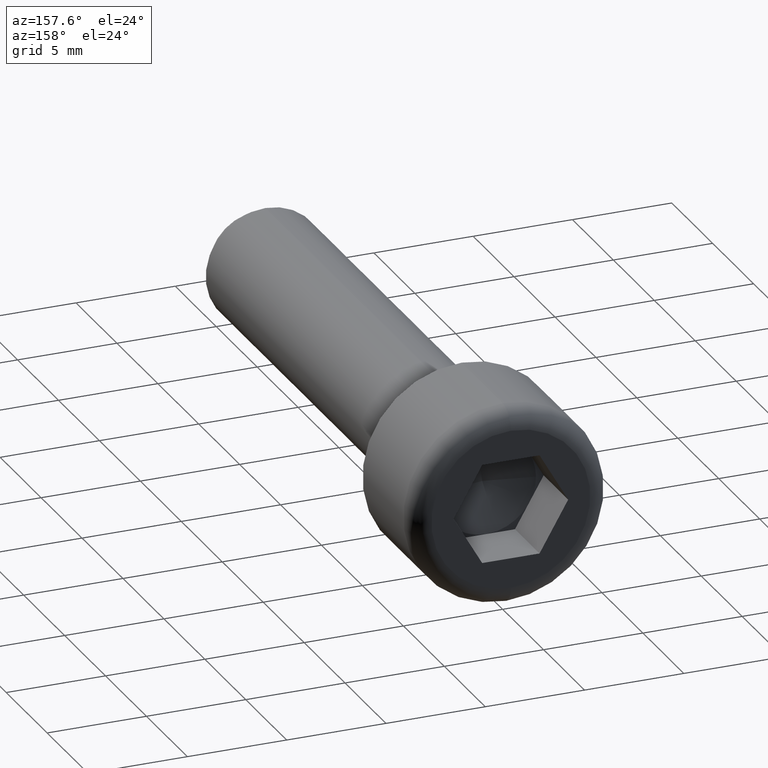
[diagram: clean part render]
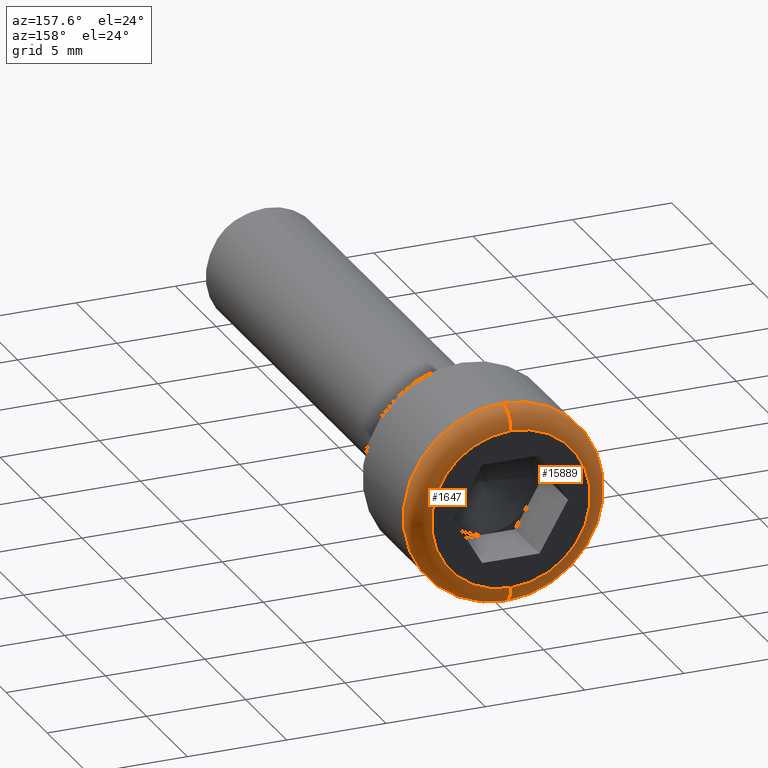
[diagram: same view with one multi-face feature highlighted, each face labeled with its STEP entity id]
A machine part, auxiliary view. The highlighted faces form ONE feature: a constant-radius fillet chain: 2 tangent blend faces with common blend radius 1 mm. The faces share edges in the B-rep.
Their STEP definitions:
[1] entity #15889 (Torus):
#61 = CARTESIAN_POINT ( 'NONE',  ( 0.000000000000000000, 5.000000000000000000, -5.000000000000000000 ) ) ;
#255 = DIRECTION ( 'NONE',  ( -0.000000000000000000, -1.000000000000000000, -0.000000000000000000 ) ) ;
#267 = EDGE_CURVE ( 'NONE', #4363, #9775, #15121, .T. ) ;
#712 = CARTESIAN_POINT ( 'NONE',  ( 0.000000000000000000, 5.000000000000000000, 4.000000000000000000 ) ) ;
#968 = VERTEX_POINT ( 'NONE', #3137 ) ;
#1314 = EDGE_CURVE ( 'NONE', #5402, #4363, #9071, .T. ) ;
#1478 = ORIENTED_EDGE ( 'NONE', *, *, #7745, .F. ) ;
#1779 = EDGE_CURVE ( 'NONE', #968, #9775, #2478, .T. ) ;
#2253 = DIRECTION ( 'NONE',  ( 0.000000000000000000, 1.000000000000000000, 0.000000000000000000 ) ) ;
#2478 = CIRCLE ( 'NONE', #5931, 1.000000000000000000 ) ;
#3137 = CARTESIAN_POINT ( 'NONE',  ( 6.123233995736766282E-16, 5.000000000000000000, 5.000000000000000000 ) ) ;
#3350 = DIRECTION ( 'NONE',  ( -1.000000000000000000, 0.000000000000000000, 0.000000000000000000 ) ) ;
#3963 = ORIENTED_EDGE ( 'NONE', *, *, #1779, .T. ) ;
#4363 = VERTEX_POINT ( 'NONE', #5431 ) ;
#5120 = DIRECTION ( 'NONE',  ( 1.000000000000000000, -0.000000000000000000, 1.224646799147353207E-16 ) ) ;
#5402 = VERTEX_POINT ( 'NONE', #61 ) ;
#5418 = DIRECTION ( 'NONE',  ( 0.000000000000000000, 0.000000000000000000, 1.000000000000000000 ) ) ;
#5431 = CARTESIAN_POINT ( 'NONE',  ( 5.510910596163088569E-16, 6.000000000000000000, -4.000000000000000000 ) ) ;
#5931 = AXIS2_PLACEMENT_3D ( 'NONE', #712, #3350, #7778 ) ;
#6273 = CIRCLE ( 'NONE', #8019, 5.000000000000000000 ) ;
#6415 = ORIENTED_EDGE ( 'NONE', *, *, #267, .F. ) ;
#6444 = DIRECTION ( 'NONE',  ( 0.000000000000000000, 0.000000000000000000, 1.000000000000000000 ) ) ;
#7745 = EDGE_CURVE ( 'NONE', #968, #5402, #6273, .T. ) ;
#7778 = DIRECTION ( 'NONE',  ( 0.000000000000000000, 0.000000000000000000, 1.000000000000000000 ) ) ;
#8019 = AXIS2_PLACEMENT_3D ( 'NONE', #8897, #255, #9026 ) ;
#8897 = CARTESIAN_POINT ( 'NONE',  ( 0.000000000000000000, 5.000000000000000000, 0.000000000000000000 ) ) ;
#9026 = DIRECTION ( 'NONE',  ( 0.000000000000000000, 0.000000000000000000, 1.000000000000000000 ) ) ;
#9071 = CIRCLE ( 'NONE', #13078, 1.000000000000000000 ) ;
#9487 = DIRECTION ( 'NONE',  ( 1.224646799147353454E-16, 0.000000000000000000, -1.000000000000000000 ) ) ;
#9727 = CARTESIAN_POINT ( 'NONE',  ( 0.000000000000000000, 5.000000000000000000, 0.000000000000000000 ) ) ;
#9775 = VERTEX_POINT ( 'NONE', #14616 ) ;
#10569 = EDGE_LOOP ( 'NONE', ( #14595, #1478, #3963, #6415 ) ) ;
#11175 = DIRECTION ( 'NONE',  ( 0.000000000000000000, 1.000000000000000000, 0.000000000000000000 ) ) ;
#11246 = AXIS2_PLACEMENT_3D ( 'NONE', #17932, #2253, #6444 ) ;
#12101 = TOROIDAL_SURFACE ( 'NONE', #16950, 4.000000000000000000, 1.000000000000000000 ) ;
#12332 = CARTESIAN_POINT ( 'NONE',  ( 4.898587196589412829E-16, 5.000000000000000000, -4.000000000000000000 ) ) ;
#13078 = AXIS2_PLACEMENT_3D ( 'NONE', #12332, #5120, #9487 ) ;
#14595 = ORIENTED_EDGE ( 'NONE', *, *, #1314, .F. ) ;
#14616 = CARTESIAN_POINT ( 'NONE',  ( 0.000000000000000000, 6.000000000000000000, 4.000000000000000000 ) ) ;
#15121 = CIRCLE ( 'NONE', #11246, 4.000000000000000000 ) ;
#15889 = ADVANCED_FACE ( 'NONE', ( #16765 ), #12101, .T. ) ;
#16765 = FACE_OUTER_BOUND ( 'NONE', #10569, .T. ) ;
#16950 = AXIS2_PLACEMENT_3D ( 'NONE', #9727, #11175, #5418 ) ;
#17932 = CARTESIAN_POINT ( 'NONE',  ( 0.000000000000000000, 6.000000000000000000, 0.000000000000000000 ) ) ;
[2] entity #1647 (Torus):
#61 = CARTESIAN_POINT ( 'NONE',  ( 0.000000000000000000, 5.000000000000000000, -5.000000000000000000 ) ) ;
#712 = CARTESIAN_POINT ( 'NONE',  ( 0.000000000000000000, 5.000000000000000000, 4.000000000000000000 ) ) ;
#746 = DIRECTION ( 'NONE',  ( 0.000000000000000000, 1.000000000000000000, 0.000000000000000000 ) ) ;
#968 = VERTEX_POINT ( 'NONE', #3137 ) ;
#1154 = CARTESIAN_POINT ( 'NONE',  ( 0.000000000000000000, 5.000000000000000000, 0.000000000000000000 ) ) ;
#1314 = EDGE_CURVE ( 'NONE', #5402, #4363, #9071, .T. ) ;
#1647 = ADVANCED_FACE ( 'NONE', ( #10187 ), #5192, .T. ) ;
#1729 = CARTESIAN_POINT ( 'NONE',  ( 0.000000000000000000, 5.000000000000000000, 0.000000000000000000 ) ) ;
#1779 = EDGE_CURVE ( 'NONE', #968, #9775, #2478, .T. ) ;
#2478 = CIRCLE ( 'NONE', #5931, 1.000000000000000000 ) ;
#3130 = CIRCLE ( 'NONE', #3630, 4.000000000000000000 ) ;
#3137 = CARTESIAN_POINT ( 'NONE',  ( 6.123233995736766282E-16, 5.000000000000000000, 5.000000000000000000 ) ) ;
#3350 = DIRECTION ( 'NONE',  ( -1.000000000000000000, 0.000000000000000000, 0.000000000000000000 ) ) ;
#3630 = AXIS2_PLACEMENT_3D ( 'NONE', #17776, #746, #15013 ) ;
#4099 = EDGE_CURVE ( 'NONE', #5402, #968, #10147, .T. ) ;
#4363 = VERTEX_POINT ( 'NONE', #5431 ) ;
#4952 = EDGE_CURVE ( 'NONE', #9775, #4363, #3130, .T. ) ;
#5075 = EDGE_LOOP ( 'NONE', ( #6275, #9732, #5464, #15584 ) ) ;
#5120 = DIRECTION ( 'NONE',  ( 1.000000000000000000, -0.000000000000000000, 1.224646799147353207E-16 ) ) ;
#5192 = TOROIDAL_SURFACE ( 'NONE', #11754, 4.000000000000000000, 1.000000000000000000 ) ;
#5402 = VERTEX_POINT ( 'NONE', #61 ) ;
#5431 = CARTESIAN_POINT ( 'NONE',  ( 5.510910596163088569E-16, 6.000000000000000000, -4.000000000000000000 ) ) ;
#5464 = ORIENTED_EDGE ( 'NONE', *, *, #4952, .F. ) ;
#5931 = AXIS2_PLACEMENT_3D ( 'NONE', #712, #3350, #7778 ) ;
#6078 = AXIS2_PLACEMENT_3D ( 'NONE', #1154, #15370, #16930 ) ;
#6275 = ORIENTED_EDGE ( 'NONE', *, *, #4099, .F. ) ;
#7778 = DIRECTION ( 'NONE',  ( 0.000000000000000000, 0.000000000000000000, 1.000000000000000000 ) ) ;
#9055 = DIRECTION ( 'NONE',  ( 0.000000000000000000, 1.000000000000000000, 0.000000000000000000 ) ) ;
#9071 = CIRCLE ( 'NONE', #13078, 1.000000000000000000 ) ;
#9487 = DIRECTION ( 'NONE',  ( 1.224646799147353454E-16, 0.000000000000000000, -1.000000000000000000 ) ) ;
#9732 = ORIENTED_EDGE ( 'NONE', *, *, #1314, .T. ) ;
#9775 = VERTEX_POINT ( 'NONE', #14616 ) ;
#10147 = CIRCLE ( 'NONE', #6078, 5.000000000000000000 ) ;
#10187 = FACE_OUTER_BOUND ( 'NONE', #5075, .T. ) ;
#11754 = AXIS2_PLACEMENT_3D ( 'NONE', #1729, #9055, #17450 ) ;
#12332 = CARTESIAN_POINT ( 'NONE',  ( 4.898587196589412829E-16, 5.000000000000000000, -4.000000000000000000 ) ) ;
#13078 = AXIS2_PLACEMENT_3D ( 'NONE', #12332, #5120, #9487 ) ;
#14616 = CARTESIAN_POINT ( 'NONE',  ( 0.000000000000000000, 6.000000000000000000, 4.000000000000000000 ) ) ;
#15013 = DIRECTION ( 'NONE',  ( 0.000000000000000000, 0.000000000000000000, 1.000000000000000000 ) ) ;
#15370 = DIRECTION ( 'NONE',  ( -0.000000000000000000, -1.000000000000000000, -0.000000000000000000 ) ) ;
#15584 = ORIENTED_EDGE ( 'NONE', *, *, #1779, .F. ) ;
#16930 = DIRECTION ( 'NONE',  ( 0.000000000000000000, 0.000000000000000000, 1.000000000000000000 ) ) ;
#17450 = DIRECTION ( 'NONE',  ( 0.000000000000000000, 0.000000000000000000, 1.000000000000000000 ) ) ;
#17776 = CARTESIAN_POINT ( 'NONE',  ( 0.000000000000000000, 6.000000000000000000, 0.000000000000000000 ) ) ;